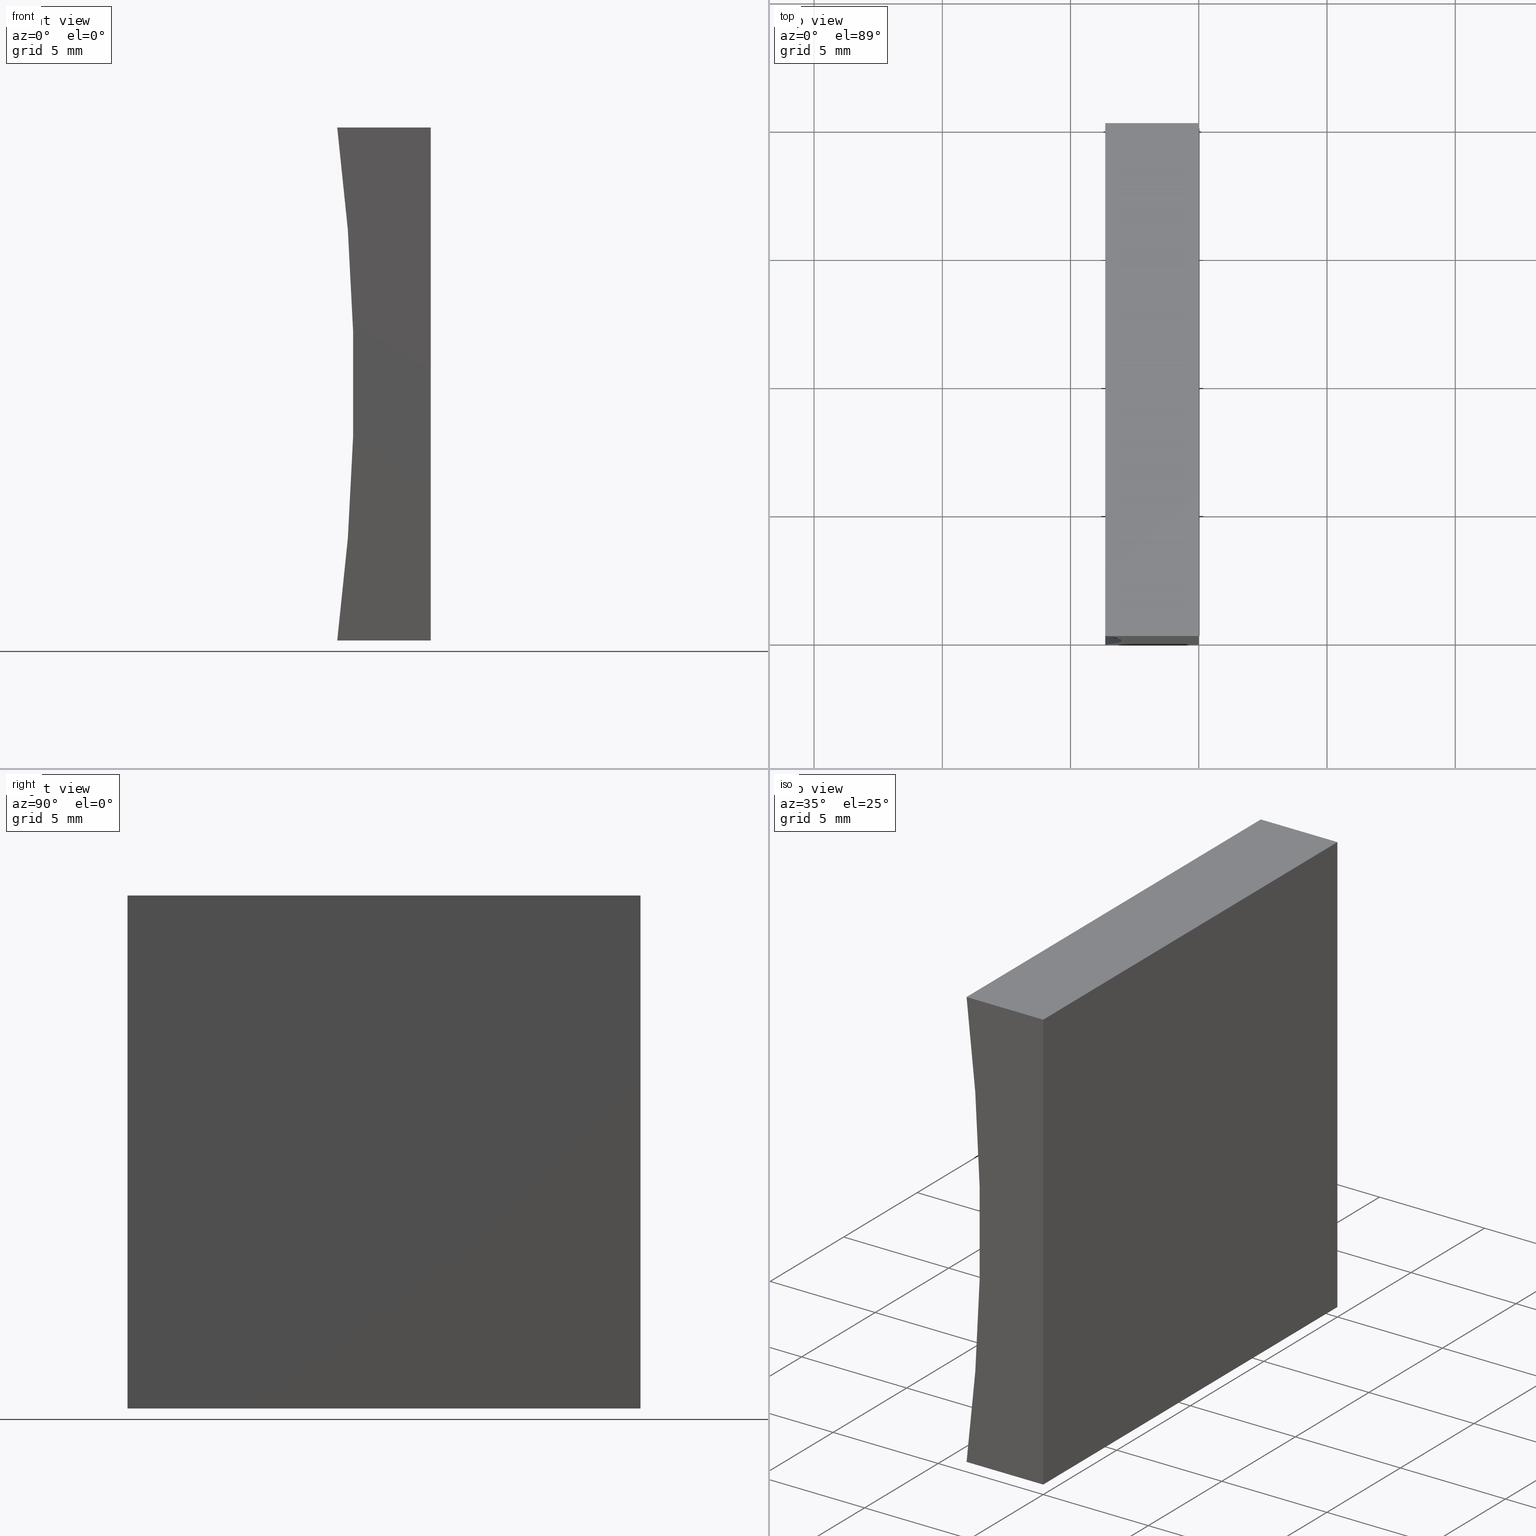
[diagram: canonical four-view strip — front | top / right | iso, engineering-drawing reading convention]
A machine part, canonical four-view strip (front | top / right | iso — engineering-drawing reading convention). The complete STEP part file that produces these views, byte-faithful:
ISO-10303-21;
HEADER;
FILE_DESCRIPTION (( 'STEP AP214' ),
    '1' );
FILE_NAME ('155348.STEP',
    '2019-06-28T03:59:22',
    ( 'user' ),
    ( '΢���й�' ),
    'SwSTEP 2.0',
    'SolidWorks 2016',
    '' );
FILE_SCHEMA (( 'AUTOMOTIVE_DESIGN' ));
ENDSEC;

DATA;
#1 = FACE_OUTER_BOUND ( 'NONE', #133, .T. ) ;
#2 = AXIS2_PLACEMENT_3D ( 'NONE', #163, #183, #98 ) ;
#3 = ORIENTED_EDGE ( 'NONE', *, *, #110, .F. ) ;
#4 = PLANE ( 'NONE',  #162 ) ;
#5 = EDGE_LOOP ( 'NONE', ( #108, #121, #138, #30 ) ) ;
#6 = DIRECTION ( 'NONE',  ( 0.0000000000000000000, 0.0000000000000000000, 1.000000000000000000 ) ) ;
#7 = ORIENTED_EDGE ( 'NONE', *, *, #35, .F. ) ;
#8 =( GEOMETRIC_REPRESENTATION_CONTEXT ( 3 ) GLOBAL_UNCERTAINTY_ASSIGNED_CONTEXT ( ( #125 ) ) GLOBAL_UNIT_ASSIGNED_CONTEXT ( ( #9, #127, #128 ) ) REPRESENTATION_CONTEXT ( 'NONE', 'WORKASPACE' ) );
#9 =( LENGTH_UNIT ( ) NAMED_UNIT ( * ) SI_UNIT ( .MILLI., .METRE. ) );
#10 = CARTESIAN_POINT ( 'NONE',  ( 0.0000000000000000000, 20.00000000000000000, 0.0000000000000000000 ) ) ;
#11 = ORIENTED_EDGE ( 'NONE', *, *, #118, .F. ) ;
#12 = CARTESIAN_POINT ( 'NONE',  ( 0.0000000000000000000, 0.0000000000000000000, 0.0000000000000000000 ) ) ;
#13 = CARTESIAN_POINT ( 'NONE',  ( 1.224646799147353300E-015, 0.0000000000000000000, 20.00000000000000000 ) ) ;
#14 = LINE ( 'NONE', #31, #55 ) ;
#15 = PRESENTATION_STYLE_ASSIGNMENT (( #63 ) ) ;
#16 = FACE_OUTER_BOUND ( 'NONE', #5, .T. ) ;
#17 = LINE ( 'NONE', #115, #22 ) ;
#18 = PLANE ( 'NONE',  #149 ) ;
#19 = VERTEX_POINT ( 'NONE', #65 ) ;
#20 = COLOUR_RGB ( '',1.000000000000000000, 1.000000000000000000, 1.000000000000000000 ) ;
#21 = DIRECTION ( 'NONE',  ( 0.0000000000000000000, 1.000000000000000000, 0.0000000000000000000 ) ) ;
#22 = VECTOR ( 'NONE', #195, 1000.000000000000000 ) ;
#23 = FACE_OUTER_BOUND ( 'NONE', #197, .T. ) ;
#24 = CARTESIAN_POINT ( 'NONE',  ( 0.0000000000000000000, 20.00000000000000000, 0.0000000000000000000 ) ) ;
#25 = DIRECTION ( 'NONE',  ( -0.0000000000000000000, -1.000000000000000000, -0.0000000000000000000 ) ) ;
#26 = LINE ( 'NONE', #130, #191 ) ;
#27 = DIRECTION ( 'NONE',  ( -0.0000000000000000000, -1.000000000000000000, -0.0000000000000000000 ) ) ;
#28 = DIRECTION ( 'NONE',  ( -1.000000000000000000, 0.0000000000000000000, 9.511984616419061300E-016 ) ) ;
#29 = VECTOR ( 'NONE', #44, 1000.000000000000000 ) ;
#30 = ORIENTED_EDGE ( 'NONE', *, *, #137, .T. ) ;
#31 = CARTESIAN_POINT ( 'NONE',  ( 1.224646799147353300E-015, 0.0000000000000000000, 20.00000000000000000 ) ) ;
#32 = CARTESIAN_POINT ( 'NONE',  ( -80.54999999999999700, 20.00000000000000000, 10.00000000000000900 ) ) ;
#33 = EDGE_CURVE ( 'NONE', #164, #81, #96, .T. ) ;
#34 = VECTOR ( 'NONE', #27, 1000.000000000000000 ) ;
#35 = EDGE_CURVE ( 'NONE', #19, #166, #104, .T. ) ;
#36 = FACE_OUTER_BOUND ( 'NONE', #123, .T. ) ;
#37 = LINE ( 'NONE', #12, #29 ) ;
#38 = VECTOR ( 'NONE', #40, 1000.000000000000000 ) ;
#39 = CARTESIAN_POINT ( 'NONE',  ( -3.647448026739705400, 20.00000000000000000, -3.469446951953614200E-015 ) ) ;
#40 = DIRECTION ( 'NONE',  ( -0.0000000000000000000, -1.000000000000000000, -0.0000000000000000000 ) ) ;
#41 = APPLICATION_CONTEXT ( 'automotive_design' ) ;
#42 = CIRCLE ( 'NONE', #154, 77.55000000000001100 ) ;
#43 = AXIS2_PLACEMENT_3D ( 'NONE', #54, #25, #107 ) ;
#44 = DIRECTION ( 'NONE',  ( -1.000000000000000000, 0.0000000000000000000, -9.511984616419059400E-016 ) ) ;
#45 = DIRECTION ( 'NONE',  ( -0.0000000000000000000, -1.000000000000000000, -0.0000000000000000000 ) ) ;
#46 = PRODUCT ( '155348', '155348', '', ( #135 ) ) ;
#47 = FACE_OUTER_BOUND ( 'NONE', #56, .T. ) ;
#48 = AXIS2_PLACEMENT_3D ( 'NONE', #99, #146, #168 ) ;
#49 = CARTESIAN_POINT ( 'NONE',  ( 1.224646799147353300E-015, 20.00000000000000000, 20.00000000000000000 ) ) ;
#50 = PRESENTATION_LAYER_ASSIGNMENT (  '', '', ( #77 ) ) ;
#51 = EDGE_LOOP ( 'NONE', ( #192, #3, #196, #180 ) ) ;
#52 = ADVANCED_FACE ( 'NONE', ( #1 ), #93, .F. ) ;
#53 = LINE ( 'NONE', #39, #38 ) ;
#54 = CARTESIAN_POINT ( 'NONE',  ( -80.54999999999999700, 0.0000000000000000000, 10.00000000000000900 ) ) ;
#55 = VECTOR ( 'NONE', #153, 1000.000000000000000 ) ;
#56 = EDGE_LOOP ( 'NONE', ( #124, #134, #113, #188 ) ) ;
#57 = CARTESIAN_POINT ( 'NONE',  ( -3.647448026739704500, 20.00000000000000000, 20.00000000000000400 ) ) ;
#58 = LINE ( 'NONE', #174, #80 ) ;
#59 = VECTOR ( 'NONE', #76, 1000.000000000000000 ) ;
#60 = ORIENTED_EDGE ( 'NONE', *, *, #136, .F. ) ;
#61 = PRESENTATION_STYLE_ASSIGNMENT (( #169 ) ) ;
#62 = MECHANICAL_DESIGN_GEOMETRIC_PRESENTATION_REPRESENTATION (  '', ( #77 ), #122 ) ;
#63 = SURFACE_STYLE_USAGE ( .BOTH. , #177 ) ;
#64 = SURFACE_STYLE_FILL_AREA ( #78 ) ;
#65 = CARTESIAN_POINT ( 'NONE',  ( 0.0000000000000000000, 20.00000000000000000, 0.0000000000000000000 ) ) ;
#66 = AXIS2_PLACEMENT_3D ( 'NONE', #24, #140, #190 ) ;
#67 = VERTEX_POINT ( 'NONE', #86 ) ;
#68 = ADVANCED_FACE ( 'NONE', ( #95 ), #4, .F. ) ;
#69 = ORIENTED_EDGE ( 'NONE', *, *, #157, .T. ) ;
#70 = EDGE_CURVE ( 'NONE', #67, #178, #83, .T. ) ;
#71 = ADVANCED_FACE ( 'NONE', ( #23 ), #126, .T. ) ;
#72 = APPLICATION_PROTOCOL_DEFINITION ( 'draft international standard', 'automotive_design', 1998, #41 ) ;
#73 = SURFACE_SIDE_STYLE ('',( #64 ) ) ;
#74 =( LENGTH_UNIT ( ) NAMED_UNIT ( * ) SI_UNIT ( .MILLI., .METRE. ) );
#75 = CLOSED_SHELL ( 'NONE', ( #151, #156, #90, #52, #71, #68 ) ) ;
#76 = DIRECTION ( 'NONE',  ( -6.123233995736766000E-017, -0.0000000000000000000, -1.000000000000000000 ) ) ;
#77 = STYLED_ITEM ( 'NONE', ( #61 ), #167 ) ;
#78 = FILL_AREA_STYLE ('',( #152 ) ) ;
#79 = ORIENTED_EDGE ( 'NONE', *, *, #176, .T. ) ;
#80 = VECTOR ( 'NONE', #106, 1000.000000000000000 ) ;
#81 = VERTEX_POINT ( 'NONE', #159 ) ;
#82 = DIRECTION ( 'NONE',  ( -0.0000000000000000000, -1.000000000000000000, -0.0000000000000000000 ) ) ;
#83 = LINE ( 'NONE', #49, #92 ) ;
#84 = COLOUR_RGB ( '',1.000000000000000000, 1.000000000000000000, 1.000000000000000000 ) ;
#85 = PRODUCT_RELATED_PRODUCT_CATEGORY ( 'part', '', ( #46 ) ) ;
#86 = CARTESIAN_POINT ( 'NONE',  ( -3.647448026739704500, 20.00000000000000000, 20.00000000000000400 ) ) ;
#87 = AXIS2_PLACEMENT_3D ( 'NONE', #199, #198, #165 ) ;
#88 = LINE ( 'NONE', #57, #34 ) ;
#89 = DIRECTION ( 'NONE',  ( 0.0000000000000000000, -0.0000000000000000000, 1.000000000000000000 ) ) ;
#90 = ADVANCED_FACE ( 'NONE', ( #16 ), #18, .F. ) ;
#91 = PRESENTATION_LAYER_ASSIGNMENT (  '', '', ( #117 ) ) ;
#92 = VECTOR ( 'NONE', #109, 1000.000000000000000 ) ;
#93 = PLANE ( 'NONE',  #66 ) ;
#94 =( NAMED_UNIT ( * ) SI_UNIT ( $, .STERADIAN. ) SOLID_ANGLE_UNIT ( ) );
#95 = FACE_OUTER_BOUND ( 'NONE', #51, .T. ) ;
#96 = CIRCLE ( 'NONE', #43, 77.55000000000001100 ) ;
#97 = VECTOR ( 'NONE', #141, 1000.000000000000000 ) ;
#98 = DIRECTION ( 'NONE',  ( 0.0000000000000000000, -0.0000000000000000000, 1.000000000000000000 ) ) ;
#99 = CARTESIAN_POINT ( 'NONE',  ( 0.0000000000000000000, 20.00000000000000000, 0.0000000000000000000 ) ) ;
#100 =( GEOMETRIC_REPRESENTATION_CONTEXT ( 3 ) GLOBAL_UNCERTAINTY_ASSIGNED_CONTEXT ( ( #139 ) ) GLOBAL_UNIT_ASSIGNED_CONTEXT ( ( #186, #181, #94 ) ) REPRESENTATION_CONTEXT ( 'NONE', 'WORKASPACE' ) );
#101 = ORIENTED_EDGE ( 'NONE', *, *, #35, .T. ) ;
#102 = CARTESIAN_POINT ( 'NONE',  ( -80.54999999999999700, 0.0000000000000000000, 10.00000000000000900 ) ) ;
#103 = ORIENTED_EDGE ( 'NONE', *, *, #70, .T. ) ;
#104 = LINE ( 'NONE', #105, #97 ) ;
#105 = CARTESIAN_POINT ( 'NONE',  ( 0.0000000000000000000, 20.00000000000000000, 0.0000000000000000000 ) ) ;
#106 = DIRECTION ( 'NONE',  ( -6.123233995736766000E-017, -0.0000000000000000000, -1.000000000000000000 ) ) ;
#107 = DIRECTION ( 'NONE',  ( 0.0000000000000000000, 0.0000000000000000000, 1.000000000000000000 ) ) ;
#108 = ORIENTED_EDGE ( 'NONE', *, *, #114, .T. ) ;
#109 = DIRECTION ( 'NONE',  ( 1.000000000000000000, -0.0000000000000000000, -9.511984616419061300E-016 ) ) ;
#110 = EDGE_CURVE ( 'NONE', #203, #129, #58, .T. ) ;
#111 = PRODUCT_DEFINITION_CONTEXT ( 'detailed design', #184, 'design' ) ;
#112 = FILL_AREA_STYLE_COLOUR ( '', #84 ) ;
#113 = ORIENTED_EDGE ( 'NONE', *, *, #176, .F. ) ;
#114 = EDGE_CURVE ( 'NONE', #81, #203, #14, .T. ) ;
#115 = CARTESIAN_POINT ( 'NONE',  ( 1.224646799147353300E-015, 20.00000000000000000, 20.00000000000000000 ) ) ;
#116 = SHAPE_DEFINITION_REPRESENTATION ( #182, #172 ) ;
#117 = STYLED_ITEM ( 'NONE', ( #15 ), #172 ) ;
#118 = EDGE_CURVE ( 'NONE', #166, #164, #53, .T. ) ;
#119 = EDGE_CURVE ( 'NONE', #129, #164, #37, .T. ) ;
#120 = ORIENTED_EDGE ( 'NONE', *, *, #185, .T. ) ;
#121 = ORIENTED_EDGE ( 'NONE', *, *, #157, .F. ) ;
#122 =( GEOMETRIC_REPRESENTATION_CONTEXT ( 3 ) GLOBAL_UNCERTAINTY_ASSIGNED_CONTEXT ( ( #187 ) ) GLOBAL_UNIT_ASSIGNED_CONTEXT ( ( #74, #194, #155 ) ) REPRESENTATION_CONTEXT ( 'NONE', 'WORKASPACE' ) );
#123 = EDGE_LOOP ( 'NONE', ( #173, #11, #7, #160 ) ) ;
#124 = ORIENTED_EDGE ( 'NONE', *, *, #33, .T. ) ;
#125 = UNCERTAINTY_MEASURE_WITH_UNIT (LENGTH_MEASURE( 1.000000000000000100E-005 ), #9, 'distance_accuracy_value', 'NONE');
#126 = PLANE ( 'NONE',  #2 ) ;
#127 =( NAMED_UNIT ( * ) PLANE_ANGLE_UNIT ( ) SI_UNIT ( $, .RADIAN. ) );
#128 =( NAMED_UNIT ( * ) SI_UNIT ( $, .STERADIAN. ) SOLID_ANGLE_UNIT ( ) );
#129 = VERTEX_POINT ( 'NONE', #144 ) ;
#130 = CARTESIAN_POINT ( 'NONE',  ( 0.0000000000000000000, 20.00000000000000000, 0.0000000000000000000 ) ) ;
#131 = MECHANICAL_DESIGN_GEOMETRIC_PRESENTATION_REPRESENTATION (  '', ( #117 ), #100 ) ;
#132 = PRODUCT_DEFINITION ( 'δ֪', '', #148, #111 ) ;
#133 = EDGE_LOOP ( 'NONE', ( #200, #60, #202, #69 ) ) ;
#134 = ORIENTED_EDGE ( 'NONE', *, *, #137, .F. ) ;
#135 = PRODUCT_CONTEXT ( 'NONE', #41, 'mechanical' ) ;
#136 = EDGE_CURVE ( 'NONE', #19, #129, #26, .T. ) ;
#137 = EDGE_CURVE ( 'NONE', #67, #81, #88, .T. ) ;
#138 = ORIENTED_EDGE ( 'NONE', *, *, #70, .F. ) ;
#139 = UNCERTAINTY_MEASURE_WITH_UNIT (LENGTH_MEASURE( 1.000000000000000100E-005 ), #186, 'distance_accuracy_value', 'NONE');
#140 = DIRECTION ( 'NONE',  ( -1.000000000000000000, 0.0000000000000000000, 6.123233995736766000E-017 ) ) ;
#141 = DIRECTION ( 'NONE',  ( -1.000000000000000000, 0.0000000000000000000, -9.511984616419059400E-016 ) ) ;
#142 = CARTESIAN_POINT ( 'NONE',  ( -80.54999999999999700, 20.00000000000000000, 10.00000000000000900 ) ) ;
#143 = SURFACE_STYLE_FILL_AREA ( #161 ) ;
#144 = CARTESIAN_POINT ( 'NONE',  ( 0.0000000000000000000, 0.0000000000000000000, 0.0000000000000000000 ) ) ;
#145 = CARTESIAN_POINT ( 'NONE',  ( 1.224646799147353300E-015, 20.00000000000000000, 20.00000000000000000 ) ) ;
#146 = DIRECTION ( 'NONE',  ( -9.511984616419059400E-016, 0.0000000000000000000, 1.000000000000000000 ) ) ;
#147 = CARTESIAN_POINT ( 'NONE',  ( -3.647448026739705400, 20.00000000000000000, -3.469446951953614200E-015 ) ) ;
#148 = PRODUCT_DEFINITION_FORMATION_WITH_SPECIFIED_SOURCE ( '�κ�', '', #46, .NOT_KNOWN. ) ;
#149 = AXIS2_PLACEMENT_3D ( 'NONE', #175, #201, #28 ) ;
#150 = AXIS2_PLACEMENT_3D ( 'NONE', #142, #45, #179 ) ;
#151 = ADVANCED_FACE ( 'NONE', ( #36 ), #171, .F. ) ;
#152 = FILL_AREA_STYLE_COLOUR ( '', #20 ) ;
#153 = DIRECTION ( 'NONE',  ( 1.000000000000000000, -0.0000000000000000000, -9.511984616419061300E-016 ) ) ;
#154 = AXIS2_PLACEMENT_3D ( 'NONE', #32, #82, #6 ) ;
#155 =( NAMED_UNIT ( * ) SI_UNIT ( $, .STERADIAN. ) SOLID_ANGLE_UNIT ( ) );
#156 = ADVANCED_FACE ( 'NONE', ( #47 ), #189, .F. ) ;
#157 = EDGE_CURVE ( 'NONE', #178, #203, #17, .T. ) ;
#158 = DIRECTION ( 'NONE',  ( -0.0000000000000000000, -1.000000000000000000, -0.0000000000000000000 ) ) ;
#159 = CARTESIAN_POINT ( 'NONE',  ( -3.647448026739704500, 0.0000000000000000000, 20.00000000000000400 ) ) ;
#160 = ORIENTED_EDGE ( 'NONE', *, *, #136, .T. ) ;
#161 = FILL_AREA_STYLE ('',( #112 ) ) ;
#162 = AXIS2_PLACEMENT_3D ( 'NONE', #102, #21, #89 ) ;
#163 = CARTESIAN_POINT ( 'NONE',  ( -80.54999999999999700, 20.00000000000000000, 10.00000000000000900 ) ) ;
#164 = VERTEX_POINT ( 'NONE', #170 ) ;
#165 = DIRECTION ( 'NONE',  ( 1.000000000000000000, 0.0000000000000000000, 0.0000000000000000000 ) ) ;
#166 = VERTEX_POINT ( 'NONE', #147 ) ;
#167 = MANIFOLD_SOLID_BREP ( '͹̨-����1', #75 ) ;
#168 = DIRECTION ( 'NONE',  ( 1.000000000000000000, 0.0000000000000000000, 9.511984616419059400E-016 ) ) ;
#169 = SURFACE_STYLE_USAGE ( .BOTH. , #73 ) ;
#170 = CARTESIAN_POINT ( 'NONE',  ( -3.647448026739705400, 0.0000000000000000000, -3.469446951953614200E-015 ) ) ;
#171 = PLANE ( 'NONE',  #48 ) ;
#172 = ADVANCED_BREP_SHAPE_REPRESENTATION ( '155348', ( #167, #87 ), #8 ) ;
#173 = ORIENTED_EDGE ( 'NONE', *, *, #119, .T. ) ;
#174 = CARTESIAN_POINT ( 'NONE',  ( 0.0000000000000000000, 0.0000000000000000000, 0.0000000000000000000 ) ) ;
#175 = CARTESIAN_POINT ( 'NONE',  ( 1.224646799147353300E-015, 20.00000000000000000, 20.00000000000000000 ) ) ;
#176 = EDGE_CURVE ( 'NONE', #166, #67, #42, .T. ) ;
#177 = SURFACE_SIDE_STYLE ('',( #143 ) ) ;
#178 = VERTEX_POINT ( 'NONE', #145 ) ;
#179 = DIRECTION ( 'NONE',  ( 0.0000000000000000000, 0.0000000000000000000, -1.000000000000000000 ) ) ;
#180 = ORIENTED_EDGE ( 'NONE', *, *, #33, .F. ) ;
#181 =( NAMED_UNIT ( * ) PLANE_ANGLE_UNIT ( ) SI_UNIT ( $, .RADIAN. ) );
#182 = PRODUCT_DEFINITION_SHAPE ( 'NONE', 'NONE',  #132 ) ;
#183 = DIRECTION ( 'NONE',  ( 0.0000000000000000000, 1.000000000000000000, 0.0000000000000000000 ) ) ;
#184 = APPLICATION_CONTEXT ( 'automotive_design' ) ;
#185 = EDGE_CURVE ( 'NONE', #178, #19, #204, .T. ) ;
#186 =( LENGTH_UNIT ( ) NAMED_UNIT ( * ) SI_UNIT ( .MILLI., .METRE. ) );
#187 = UNCERTAINTY_MEASURE_WITH_UNIT (LENGTH_MEASURE( 1.000000000000000100E-005 ), #74, 'distance_accuracy_value', 'NONE');
#188 = ORIENTED_EDGE ( 'NONE', *, *, #118, .T. ) ;
#189 = CYLINDRICAL_SURFACE ( 'NONE', #150, 77.55000000000001100 ) ;
#190 = DIRECTION ( 'NONE',  ( 6.123233995736766000E-017, 0.0000000000000000000, 1.000000000000000000 ) ) ;
#191 = VECTOR ( 'NONE', #158, 1000.000000000000000 ) ;
#192 = ORIENTED_EDGE ( 'NONE', *, *, #119, .F. ) ;
#193 = APPLICATION_PROTOCOL_DEFINITION ( 'draft international standard', 'automotive_design', 1998, #184 ) ;
#194 =( NAMED_UNIT ( * ) PLANE_ANGLE_UNIT ( ) SI_UNIT ( $, .RADIAN. ) );
#195 = DIRECTION ( 'NONE',  ( -0.0000000000000000000, -1.000000000000000000, -0.0000000000000000000 ) ) ;
#196 = ORIENTED_EDGE ( 'NONE', *, *, #114, .F. ) ;
#197 = EDGE_LOOP ( 'NONE', ( #101, #79, #103, #120 ) ) ;
#198 = DIRECTION ( 'NONE',  ( 0.0000000000000000000, 0.0000000000000000000, 1.000000000000000000 ) ) ;
#199 = CARTESIAN_POINT ( 'NONE',  ( 0.0000000000000000000, 0.0000000000000000000, 0.0000000000000000000 ) ) ;
#200 = ORIENTED_EDGE ( 'NONE', *, *, #110, .T. ) ;
#201 = DIRECTION ( 'NONE',  ( -9.511984616419061300E-016, 0.0000000000000000000, -1.000000000000000000 ) ) ;
#202 = ORIENTED_EDGE ( 'NONE', *, *, #185, .F. ) ;
#203 = VERTEX_POINT ( 'NONE', #13 ) ;
#204 = LINE ( 'NONE', #10, #59 ) ;
ENDSEC;
END-ISO-10303-21;
